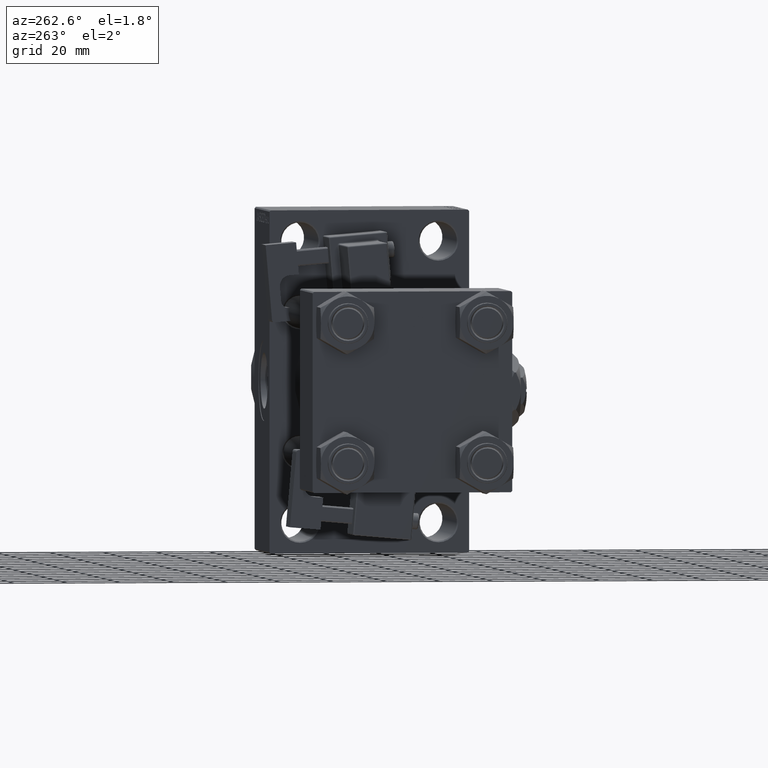
[diagram: clean part render]
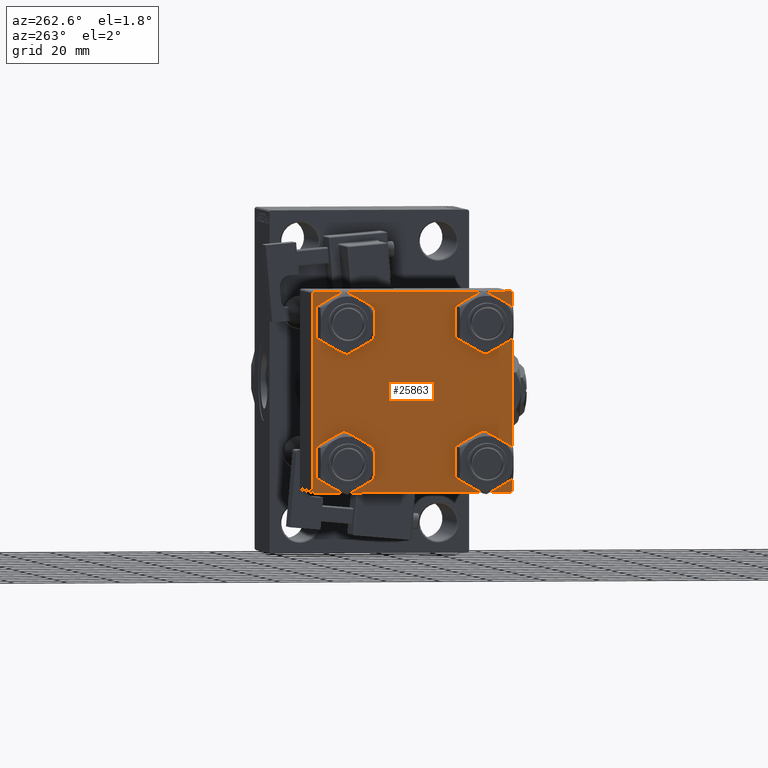
[diagram: same view with one face highlighted and labeled with its STEP entity id]
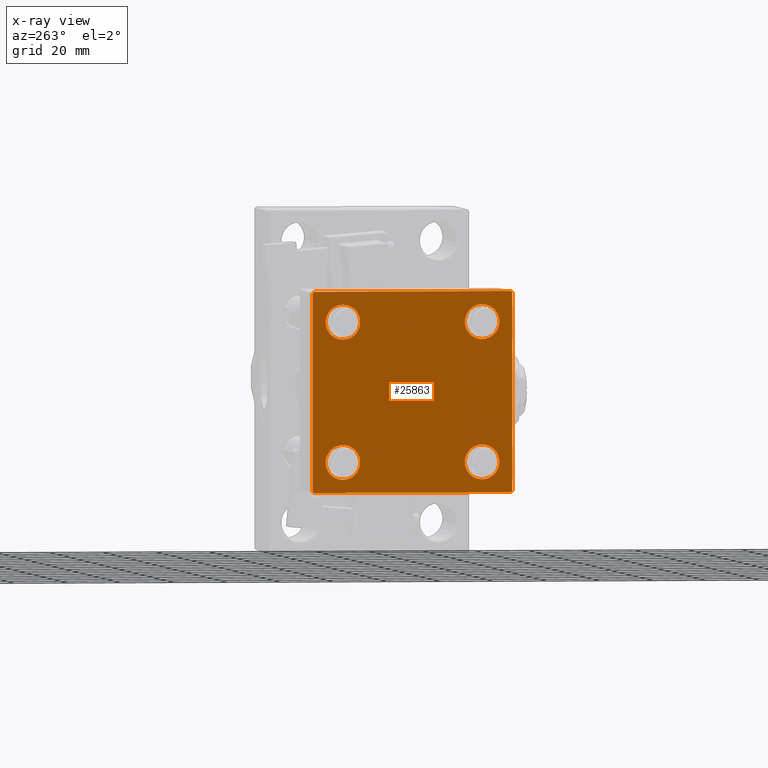
[diagram: x-ray of the same camera — body ghosted, the highlighted face saturated]
A machine part, auxiliary view. The second image highlights one B-rep face of the part: STEP entity #25863.
The next image is the same camera in x-ray: the body ghosted, the highlighted face saturated — about 0% of this face is hidden behind the body in this view.
In plain terms, the highlighted planar face has unit normal (-1, 0, 0).
Its self-contained STEP definition (entity closure, byte-faithful):
#484 = ORIENTED_EDGE ( 'NONE', *, *, #25934, .T. ) ;
#714 = AXIS2_PLACEMENT_3D ( 'NONE', #46816, #11825, #7202 ) ;
#784 = CARTESIAN_POINT ( 'NONE',  ( 0.000000000000000000, 26.14999999999999858, 26.15000000000000213 ) ) ;
#1448 = EDGE_CURVE ( 'NONE', #33068, #29401, #39331, .T. ) ;
#1511 = CARTESIAN_POINT ( 'NONE',  ( 0.000000000000000000, 26.14999999999999858, 26.15000000000000213 ) ) ;
#1599 = DIRECTION ( 'NONE',  ( 0.000000000000000000, 0.000000000000000000, 1.000000000000000000 ) ) ;
#1632 = EDGE_CURVE ( 'NONE', #5777, #44631, #15505, .T. ) ;
#2935 = CIRCLE ( 'NONE', #48110, 6.500000000000023093 ) ;
#3021 = VERTEX_POINT ( 'NONE', #10435 ) ;
#3868 = DIRECTION ( 'NONE',  ( 0.000000000000000000, 0.000000000000000000, 1.000000000000000000 ) ) ;
#4289 = CARTESIAN_POINT ( 'NONE',  ( 0.000000000000000000, 36.99999999999999289, 37.50000000000000000 ) ) ;
#4425 = DIRECTION ( 'NONE',  ( 1.000000000000000000, -0.000000000000000000, 0.000000000000000000 ) ) ;
#4948 = DIRECTION ( 'NONE',  ( 0.000000000000000000, -1.000000000000000000, -9.251858538542971581E-17 ) ) ;
#5374 = ORIENTED_EDGE ( 'NONE', *, *, #18486, .T. ) ;
#5528 = ORIENTED_EDGE ( 'NONE', *, *, #37451, .T. ) ;
#5777 = VERTEX_POINT ( 'NONE', #7005 ) ;
#6213 = AXIS2_PLACEMENT_3D ( 'NONE', #22791, #10970, #7373 ) ;
#6486 = AXIS2_PLACEMENT_3D ( 'NONE', #784, #23413, #3868 ) ;
#6848 = LINE ( 'NONE', #18424, #48030 ) ;
#7005 = CARTESIAN_POINT ( 'NONE',  ( 0.000000000000000000, -26.14999999999999147, -19.64999999999999503 ) ) ;
#7202 = DIRECTION ( 'NONE',  ( 0.000000000000000000, 0.000000000000000000, 1.000000000000000000 ) ) ;
#7373 = DIRECTION ( 'NONE',  ( 0.000000000000000000, 0.000000000000000000, 1.000000000000000000 ) ) ;
#7954 = DIRECTION ( 'NONE',  ( 1.000000000000000000, -0.000000000000000000, 0.000000000000000000 ) ) ;
#8532 = DIRECTION ( 'NONE',  ( 0.000000000000000000, -0.7071067811865524577, 0.7071067811865426878 ) ) ;
#8805 = CARTESIAN_POINT ( 'NONE',  ( 0.000000000000000000, 37.49999999999999289, 37.50000000000000000 ) ) ;
#9000 = EDGE_CURVE ( 'NONE', #31461, #12561, #46035, .T. ) ;
#9120 = AXIS2_PLACEMENT_3D ( 'NONE', #13289, #17900, #10183 ) ;
#9465 = ORIENTED_EDGE ( 'NONE', *, *, #35101, .F. ) ;
#10183 = DIRECTION ( 'NONE',  ( 0.000000000000000000, 0.000000000000000000, 1.000000000000000000 ) ) ;
#10383 = DIRECTION ( 'NONE',  ( 0.000000000000000000, 9.251858538542971581E-17, -1.000000000000000000 ) ) ;
#10435 = CARTESIAN_POINT ( 'NONE',  ( 0.000000000000000000, -37.50000000000000000, -37.00000000000003553 ) ) ;
#10525 = ORIENTED_EDGE ( 'NONE', *, *, #9000, .T. ) ;
#10970 = DIRECTION ( 'NONE',  ( 1.000000000000000000, -0.000000000000000000, 0.000000000000000000 ) ) ;
#11379 = VERTEX_POINT ( 'NONE', #29812 ) ;
#11825 = DIRECTION ( 'NONE',  ( 1.000000000000000000, -0.000000000000000000, 0.000000000000000000 ) ) ;
#12098 = ORIENTED_EDGE ( 'NONE', *, *, #38884, .T. ) ;
#12218 = ORIENTED_EDGE ( 'NONE', *, *, #27882, .T. ) ;
#12523 = AXIS2_PLACEMENT_3D ( 'NONE', #29095, #49578, #17011 ) ;
#12561 = VERTEX_POINT ( 'NONE', #35660 ) ;
#12642 = LINE ( 'NONE', #43776, #49520 ) ;
#13170 = CARTESIAN_POINT ( 'NONE',  ( 0.000000000000000000, -26.14999999999999147, 32.65000000000003411 ) ) ;
#13289 = CARTESIAN_POINT ( 'NONE',  ( 0.000000000000000000, 26.14999999999999858, -26.15000000000000213 ) ) ;
#13660 = CARTESIAN_POINT ( 'NONE',  ( 0.000000000000000000, 26.14999999999999858, -32.65000000000001990 ) ) ;
#14701 = CIRCLE ( 'NONE', #6486, 6.500000000000023093 ) ;
#15164 = DIRECTION ( 'NONE',  ( 1.000000000000000000, -0.000000000000000000, 0.000000000000000000 ) ) ;
#15505 = CIRCLE ( 'NONE', #714, 6.500000000000015987 ) ;
#16079 = ORIENTED_EDGE ( 'NONE', *, *, #48547, .T. ) ;
#16913 = VECTOR ( 'NONE', #10383, 1000.000000000000000 ) ;
#17011 = DIRECTION ( 'NONE',  ( -0.000000000000000000, 0.000000000000000000, 1.000000000000000000 ) ) ;
#17119 = EDGE_CURVE ( 'NONE', #17919, #3021, #12642, .T. ) ;
#17900 = DIRECTION ( 'NONE',  ( 1.000000000000000000, -0.000000000000000000, 0.000000000000000000 ) ) ;
#17919 = VERTEX_POINT ( 'NONE', #36071 ) ;
#18106 = LINE ( 'NONE', #29937, #16913 ) ;
#18424 = CARTESIAN_POINT ( 'NONE',  ( 0.000000000000000000, 37.49999999999999289, -37.50000000000000000 ) ) ;
#18486 = EDGE_CURVE ( 'NONE', #33201, #30433, #32312, .T. ) ;
#18765 = CARTESIAN_POINT ( 'NONE',  ( 0.000000000000000000, 26.14999999999999858, -26.15000000000000213 ) ) ;
#18959 = LINE ( 'NONE', #46993, #22379 ) ;
#19317 = VECTOR ( 'NONE', #37600, 1000.000000000000114 ) ;
#19437 = VERTEX_POINT ( 'NONE', #4289 ) ;
#19865 = CARTESIAN_POINT ( 'NONE',  ( 0.000000000000000000, 37.24999999999998579, -37.24999999999998579 ) ) ;
#20840 = ORIENTED_EDGE ( 'NONE', *, *, #49178, .T. ) ;
#20869 = FACE_BOUND ( 'NONE', #22701, .T. ) ;
#21317 = EDGE_LOOP ( 'NONE', ( #21989, #30563 ) ) ;
#21456 = EDGE_CURVE ( 'NONE', #26524, #17919, #6848, .T. ) ;
#21687 = VECTOR ( 'NONE', #39904, 1000.000000000000114 ) ;
#21989 = ORIENTED_EDGE ( 'NONE', *, *, #1448, .T. ) ;
#22301 = FACE_BOUND ( 'NONE', #48002, .T. ) ;
#22379 = VECTOR ( 'NONE', #47247, 1000.000000000000000 ) ;
#22701 = EDGE_LOOP ( 'NONE', ( #5374, #20840 ) ) ;
#22791 = CARTESIAN_POINT ( 'NONE',  ( 0.000000000000000000, -26.14999999999999147, -26.15000000000000924 ) ) ;
#23413 = DIRECTION ( 'NONE',  ( 1.000000000000000000, -0.000000000000000000, 0.000000000000000000 ) ) ;
#24725 = PLANE ( 'NONE',  #12523 ) ;
#25397 = VECTOR ( 'NONE', #35563, 1000.000000000000114 ) ;
#25863 = ADVANCED_FACE ( 'NONE', ( #44282, #22301, #30277, #20869, #45970 ), #24725, .T. ) ;
#25934 = EDGE_CURVE ( 'NONE', #39980, #27721, #18959, .T. ) ;
#26474 = EDGE_LOOP ( 'NONE', ( #12098, #10525 ) ) ;
#26524 = VERTEX_POINT ( 'NONE', #48147 ) ;
#27721 = VERTEX_POINT ( 'NONE', #42230 ) ;
#27882 = EDGE_CURVE ( 'NONE', #48744, #11379, #43510, .T. ) ;
#28072 = CARTESIAN_POINT ( 'NONE',  ( -0.000000000000000000, -37.25000000000000000, 37.25000000000000000 ) ) ;
#28435 = AXIS2_PLACEMENT_3D ( 'NONE', #18765, #15164, #34207 ) ;
#29095 = CARTESIAN_POINT ( 'NONE',  ( 0.000000000000000000, 0.000000000000000000, 0.000000000000000000 ) ) ;
#29277 = CIRCLE ( 'NONE', #28435, 6.500000000000015987 ) ;
#29401 = VERTEX_POINT ( 'NONE', #41872 ) ;
#29812 = CARTESIAN_POINT ( 'NONE',  ( 0.000000000000000000, -37.00000000000000711, 37.49999999999999289 ) ) ;
#29937 = CARTESIAN_POINT ( 'NONE',  ( 0.000000000000000000, -37.50000000000000711, 37.49999999999999289 ) ) ;
#30224 = ORIENTED_EDGE ( 'NONE', *, *, #36713, .T. ) ;
#30277 = FACE_BOUND ( 'NONE', #26474, .T. ) ;
#30433 = VERTEX_POINT ( 'NONE', #31687 ) ;
#30563 = ORIENTED_EDGE ( 'NONE', *, *, #37957, .T. ) ;
#30941 = EDGE_LOOP ( 'NONE', ( #484, #16079, #40515, #36180, #9465, #12218, #33623, #30224 ) ) ;
#31399 = EDGE_CURVE ( 'NONE', #19437, #11379, #40180, .T. ) ;
#31461 = VERTEX_POINT ( 'NONE', #13660 ) ;
#31687 = CARTESIAN_POINT ( 'NONE',  ( 0.000000000000000000, 26.14999999999999858, 19.64999999999998437 ) ) ;
#32312 = CIRCLE ( 'NONE', #42178, 6.500000000000023093 ) ;
#32634 = DIRECTION ( 'NONE',  ( 0.000000000000000000, 0.000000000000000000, 1.000000000000000000 ) ) ;
#33068 = VERTEX_POINT ( 'NONE', #13170 ) ;
#33201 = VERTEX_POINT ( 'NONE', #48674 ) ;
#33623 = ORIENTED_EDGE ( 'NONE', *, *, #31399, .F. ) ;
#33761 = CARTESIAN_POINT ( 'NONE',  ( 0.000000000000000000, 37.24999999999999289, 37.24999999999999289 ) ) ;
#34204 = DIRECTION ( 'NONE',  ( 0.000000000000000000, 0.000000000000000000, 1.000000000000000000 ) ) ;
#34207 = DIRECTION ( 'NONE',  ( 0.000000000000000000, 0.000000000000000000, 1.000000000000000000 ) ) ;
#34895 = ORIENTED_EDGE ( 'NONE', *, *, #1632, .T. ) ;
#35101 = EDGE_CURVE ( 'NONE', #48744, #3021, #18106, .T. ) ;
#35563 = DIRECTION ( 'NONE',  ( -0.000000000000000000, -0.7071067811865474617, -0.7071067811865474617 ) ) ;
#35660 = CARTESIAN_POINT ( 'NONE',  ( 0.000000000000000000, 26.14999999999999858, -19.64999999999998792 ) ) ;
#36071 = CARTESIAN_POINT ( 'NONE',  ( 0.000000000000000000, -37.00000000000002132, -37.50000000000000711 ) ) ;
#36180 = ORIENTED_EDGE ( 'NONE', *, *, #17119, .T. ) ;
#36713 = EDGE_CURVE ( 'NONE', #19437, #39980, #48945, .T. ) ;
#36823 = CARTESIAN_POINT ( 'NONE',  ( 0.000000000000000000, -26.14999999999999147, 26.15000000000000924 ) ) ;
#37419 = CIRCLE ( 'NONE', #6213, 6.500000000000015987 ) ;
#37451 = EDGE_CURVE ( 'NONE', #44631, #5777, #37419, .T. ) ;
#37600 = DIRECTION ( 'NONE',  ( 0.000000000000000000, 0.7071067811865474617, -0.7071067811865474617 ) ) ;
#37957 = EDGE_CURVE ( 'NONE', #29401, #33068, #2935, .T. ) ;
#38472 = AXIS2_PLACEMENT_3D ( 'NONE', #36823, #4425, #1599 ) ;
#38884 = EDGE_CURVE ( 'NONE', #12561, #31461, #29277, .T. ) ;
#39331 = CIRCLE ( 'NONE', #38472, 6.500000000000023093 ) ;
#39606 = CARTESIAN_POINT ( 'NONE',  ( 0.000000000000000000, 37.49999999999999289, 37.00000000000000000 ) ) ;
#39693 = CARTESIAN_POINT ( 'NONE',  ( 0.000000000000000000, -26.14999999999999147, -32.65000000000002700 ) ) ;
#39904 = DIRECTION ( 'NONE',  ( -0.000000000000000000, 0.7071067811865474617, 0.7071067811865474617 ) ) ;
#39980 = VERTEX_POINT ( 'NONE', #39606 ) ;
#40180 = LINE ( 'NONE', #8805, #43936 ) ;
#40515 = ORIENTED_EDGE ( 'NONE', *, *, #21456, .T. ) ;
#40598 = DIRECTION ( 'NONE',  ( 1.000000000000000000, -0.000000000000000000, 0.000000000000000000 ) ) ;
#41872 = CARTESIAN_POINT ( 'NONE',  ( 0.000000000000000000, -26.14999999999999147, 19.64999999999999147 ) ) ;
#42178 = AXIS2_PLACEMENT_3D ( 'NONE', #1511, #40598, #32634 ) ;
#42230 = CARTESIAN_POINT ( 'NONE',  ( 0.000000000000000000, 37.49999999999999289, -36.99999999999998579 ) ) ;
#42353 = DIRECTION ( 'NONE',  ( 0.000000000000000000, -1.000000000000000000, -9.251858538542972814E-17 ) ) ;
#43510 = LINE ( 'NONE', #28072, #21687 ) ;
#43776 = CARTESIAN_POINT ( 'NONE',  ( 0.000000000000000000, -37.24999999999975842, -37.25000000000027001 ) ) ;
#43936 = VECTOR ( 'NONE', #4948, 1000.000000000000000 ) ;
#44282 = FACE_BOUND ( 'NONE', #21317, .T. ) ;
#44631 = VERTEX_POINT ( 'NONE', #39693 ) ;
#45970 = FACE_OUTER_BOUND ( 'NONE', #30941, .T. ) ;
#46035 = CIRCLE ( 'NONE', #9120, 6.500000000000015987 ) ;
#46050 = CARTESIAN_POINT ( 'NONE',  ( 0.000000000000000000, -37.50000000000000711, 36.99999999999999289 ) ) ;
#46816 = CARTESIAN_POINT ( 'NONE',  ( 0.000000000000000000, -26.14999999999999147, -26.15000000000000924 ) ) ;
#46993 = CARTESIAN_POINT ( 'NONE',  ( 0.000000000000000000, 37.49999999999999289, 37.50000000000000000 ) ) ;
#47053 = CARTESIAN_POINT ( 'NONE',  ( 0.000000000000000000, -26.14999999999999147, 26.15000000000000924 ) ) ;
#47133 = LINE ( 'NONE', #19865, #25397 ) ;
#47247 = DIRECTION ( 'NONE',  ( 0.000000000000000000, 0.000000000000000000, -1.000000000000000000 ) ) ;
#48002 = EDGE_LOOP ( 'NONE', ( #34895, #5528 ) ) ;
#48030 = VECTOR ( 'NONE', #42353, 1000.000000000000000 ) ;
#48110 = AXIS2_PLACEMENT_3D ( 'NONE', #47053, #7954, #34204 ) ;
#48147 = CARTESIAN_POINT ( 'NONE',  ( 0.000000000000000000, 36.99999999999997868, -37.50000000000000000 ) ) ;
#48547 = EDGE_CURVE ( 'NONE', #27721, #26524, #47133, .T. ) ;
#48674 = CARTESIAN_POINT ( 'NONE',  ( 0.000000000000000000, 26.14999999999999858, 32.65000000000002700 ) ) ;
#48744 = VERTEX_POINT ( 'NONE', #46050 ) ;
#48945 = LINE ( 'NONE', #33761, #19317 ) ;
#49178 = EDGE_CURVE ( 'NONE', #30433, #33201, #14701, .T. ) ;
#49520 = VECTOR ( 'NONE', #8532, 1000.000000000000000 ) ;
#49578 = DIRECTION ( 'NONE',  ( -1.000000000000000000, 0.000000000000000000, -0.000000000000000000 ) ) ;